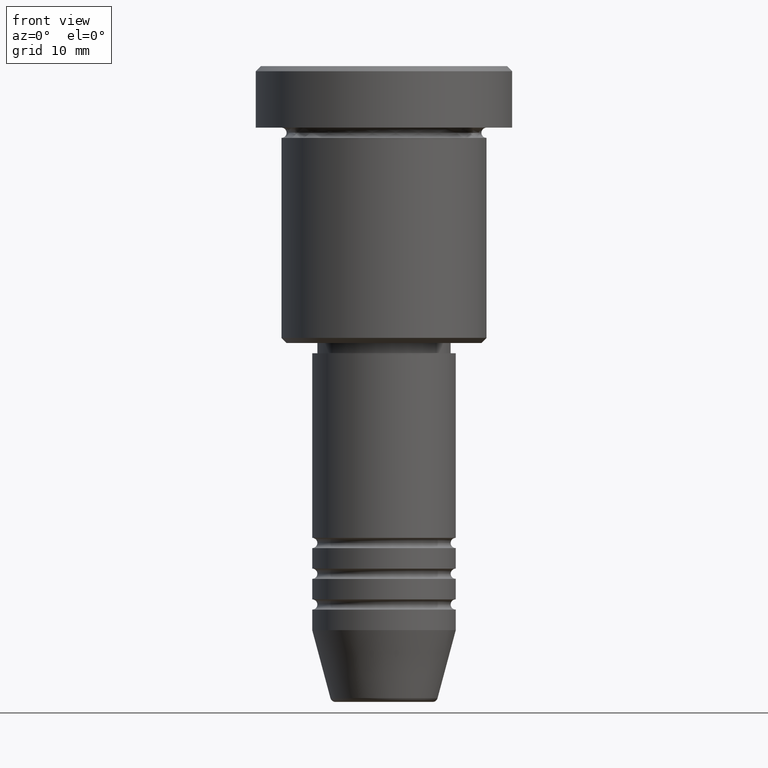
[diagram: clean part render]
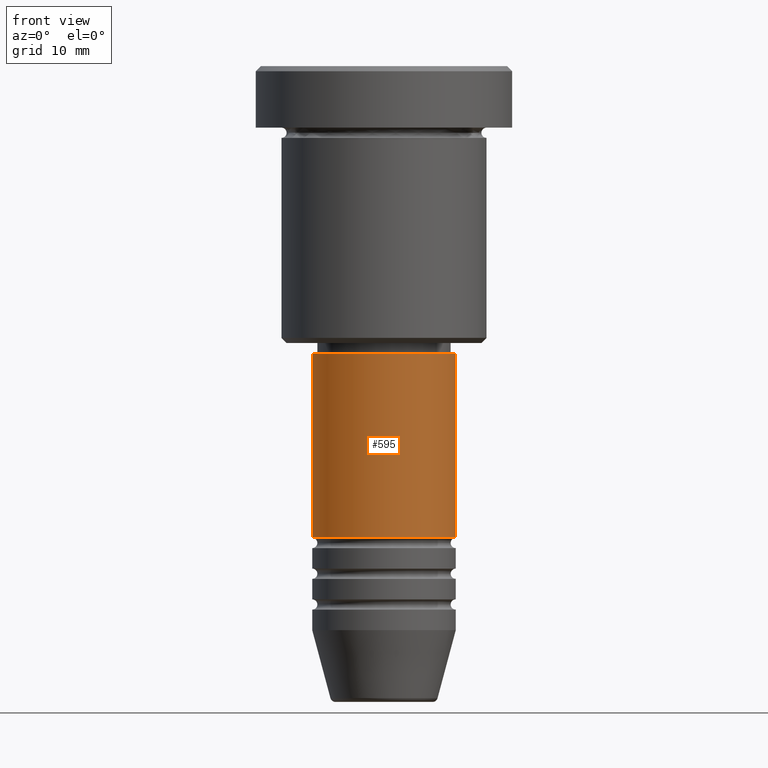
[diagram: same view with one face highlighted and labeled with its STEP entity id]
A machine part, front view. The second image highlights one B-rep face of the part: STEP entity #595.
In plain terms, the highlighted cylindrical surface (partial cylindrical patch) has radius 7 mm, axis along (-0, -0, 1).
Its self-contained STEP definition (entity closure, byte-faithful):
#56 = EDGE_CURVE ( 'NONE', #413, #334, #725, .T. ) ;
#72 = CARTESIAN_POINT ( 'NONE',  ( -7.000000000000000000, 8.572527594031473190E-16, -45.99999999999997868 ) ) ;
#116 = DIRECTION ( 'NONE',  ( 1.000000000000000000, 0.000000000000000000, 0.000000000000000000 ) ) ;
#136 = DIRECTION ( 'NONE',  ( -0.000000000000000000, -0.000000000000000000, 1.000000000000000000 ) ) ;
#147 = DIRECTION ( 'NONE',  ( -0.000000000000000000, -0.000000000000000000, 1.000000000000000000 ) ) ;
#164 = CARTESIAN_POINT ( 'NONE',  ( 0.000000000000000000, 0.000000000000000000, 0.000000000000000000 ) ) ;
#168 = CARTESIAN_POINT ( 'NONE',  ( 7.000000000000000000, 0.000000000000000000, 0.000000000000000000 ) ) ;
#174 = DIRECTION ( 'NONE',  ( -0.000000000000000000, -0.000000000000000000, 1.000000000000000000 ) ) ;
#187 = DIRECTION ( 'NONE',  ( -0.000000000000000000, -0.000000000000000000, 1.000000000000000000 ) ) ;
#215 = CARTESIAN_POINT ( 'NONE',  ( 0.000000000000000000, 0.000000000000000000, -45.99999999999997868 ) ) ;
#218 = AXIS2_PLACEMENT_3D ( 'NONE', #164, #1074, #710 ) ;
#255 = VECTOR ( 'NONE', #174, 1000.000000000000000 ) ;
#293 = CIRCLE ( 'NONE', #951, 7.000000000000000000 ) ;
#334 = VERTEX_POINT ( 'NONE', #1077 ) ;
#357 = LINE ( 'NONE', #513, #1156 ) ;
#413 = VERTEX_POINT ( 'NONE', #706 ) ;
#513 = CARTESIAN_POINT ( 'NONE',  ( -7.000000000000000000, 8.572527594031473190E-16, 0.000000000000000000 ) ) ;
#595 = ADVANCED_FACE ( 'NONE', ( #958 ), #877, .T. ) ;
#602 = ORIENTED_EDGE ( 'NONE', *, *, #56, .T. ) ;
#606 = CARTESIAN_POINT ( 'NONE',  ( 0.000000000000000000, 0.000000000000000000, -28.00000000000000355 ) ) ;
#619 = CIRCLE ( 'NONE', #1055, 7.000000000000000000 ) ;
#696 = VERTEX_POINT ( 'NONE', #859 ) ;
#706 = CARTESIAN_POINT ( 'NONE',  ( 7.000000000000000000, 0.000000000000000000, -45.99999999999997868 ) ) ;
#710 = DIRECTION ( 'NONE',  ( 1.000000000000000000, 0.000000000000000000, 0.000000000000000000 ) ) ;
#725 = LINE ( 'NONE', #168, #255 ) ;
#794 = EDGE_LOOP ( 'NONE', ( #1117, #956, #602, #1169 ) ) ;
#850 = DIRECTION ( 'NONE',  ( 1.000000000000000000, 0.000000000000000000, 0.000000000000000000 ) ) ;
#859 = CARTESIAN_POINT ( 'NONE',  ( -7.000000000000000000, 8.572527594031473190E-16, -28.00000000000000355 ) ) ;
#876 = EDGE_CURVE ( 'NONE', #1122, #413, #293, .T. ) ;
#877 = CYLINDRICAL_SURFACE ( 'NONE', #218, 7.000000000000000000 ) ;
#945 = EDGE_CURVE ( 'NONE', #696, #334, #619, .T. ) ;
#951 = AXIS2_PLACEMENT_3D ( 'NONE', #215, #136, #850 ) ;
#956 = ORIENTED_EDGE ( 'NONE', *, *, #876, .T. ) ;
#958 = FACE_OUTER_BOUND ( 'NONE', #794, .T. ) ;
#1055 = AXIS2_PLACEMENT_3D ( 'NONE', #606, #187, #116 ) ;
#1074 = DIRECTION ( 'NONE',  ( -0.000000000000000000, -0.000000000000000000, 1.000000000000000000 ) ) ;
#1077 = CARTESIAN_POINT ( 'NONE',  ( 7.000000000000000000, 0.000000000000000000, -28.00000000000000355 ) ) ;
#1117 = ORIENTED_EDGE ( 'NONE', *, *, #1163, .F. ) ;
#1122 = VERTEX_POINT ( 'NONE', #72 ) ;
#1156 = VECTOR ( 'NONE', #147, 1000.000000000000000 ) ;
#1163 = EDGE_CURVE ( 'NONE', #1122, #696, #357, .T. ) ;
#1169 = ORIENTED_EDGE ( 'NONE', *, *, #945, .F. ) ;